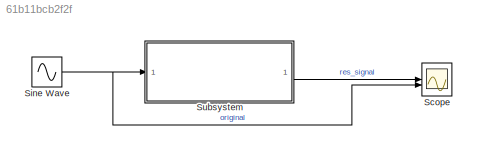
MODEL slx_61b11bcb2f2f
KIND model
CONFIG AbsTol = auto
CONFIG EnableMultiTasking = off
CONFIG FixedStep = auto
CONFIG MaxStep = auto
CONFIG MinStep = auto
CONFIG RelTol = 1e-3
CONFIG SampleTimeConstraint = Unconstrained
CONFIG SolverName = VariableStepAuto
CONFIG StartTime = 0.0
CONFIG StopTime = 10.0
BLOCK [Scope] Scope
  Floating = off
  NumInputPorts = 2
  ScopeSpecificationString = Simulink.scopes.TimeScopeBlockCfg('CurrentConfiguration', extmgr.ConfigurationSet(extmgr.Configuration('Core','General UI',true),extmgr.Configuration('Core','Source UI',true),extmgr.Configuration('Sources','WiredSimulink',true),extmgr.Configuration('Visuals','Time Domain',true,'SerializedDisplays',{struct('MinYLimReal','-1.24861','MaxYLimReal','1.24861','YLabelReal','','MinYLimMag','0.00000','MaxY...<+1386ch>
BLOCK [Sin] Sine Wave
  SampleTime = 0
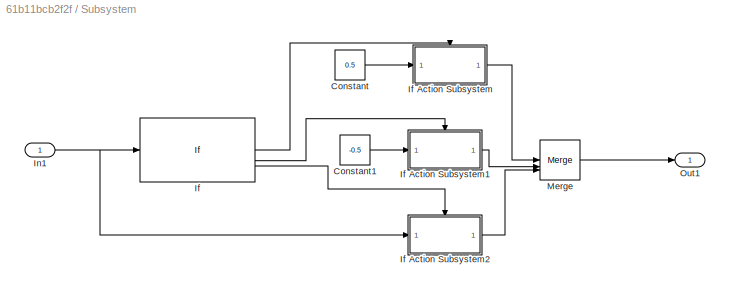
BLOCK [SubSystem] Subsystem
BLOCK [Constant] Subsystem/Constant
  Value = 0.5
BLOCK [Constant] Subsystem/Constant1
  Value = -0.5
BLOCK [If] Subsystem/If
  ElseIfExpressions = u1<=-0.5
  IfExpression = u1 >= 0.5
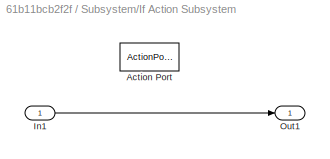
BLOCK [SubSystem] Subsystem/If Action Subsystem
  TreatAsAtomicUnit = on
BLOCK [ActionPort] Subsystem/If Action Subsystem/Action Port
  ActionPortLabel = if(u1 >= 0.5)
BLOCK [Inport] Subsystem/If Action Subsystem/In1
BLOCK [Outport] Subsystem/If Action Subsystem/Out1
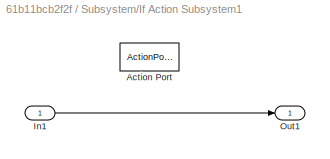
BLOCK [SubSystem] Subsystem/If Action Subsystem1
  TreatAsAtomicUnit = on
BLOCK [ActionPort] Subsystem/If Action Subsystem1/Action Port
  ActionPortLabel = elseif(u1<=-0.5)
BLOCK [Inport] Subsystem/If Action Subsystem1/In1
BLOCK [Outport] Subsystem/If Action Subsystem1/Out1
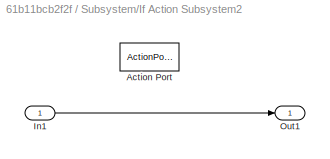
BLOCK [SubSystem] Subsystem/If Action Subsystem2
  TreatAsAtomicUnit = on
BLOCK [ActionPort] Subsystem/If Action Subsystem2/Action Port
  ActionPortLabel = else
BLOCK [Inport] Subsystem/If Action Subsystem2/In1
BLOCK [Outport] Subsystem/If Action Subsystem2/Out1
BLOCK [Inport] Subsystem/In1
BLOCK [Merge] Subsystem/Merge
  Inputs = 3
BLOCK [Outport] Subsystem/Out1
NET Sine Wave:1 -> Scope:2, Subsystem:1
LINE Subsystem/Constant1:1 -> Subsystem/If Action Subsystem1:1
LINE Subsystem/Constant:1 -> Subsystem/If Action Subsystem:1
LINE Subsystem/If Action Subsystem/In1:1 -> Subsystem/If Action Subsystem/Out1:1
LINE Subsystem/If Action Subsystem1/In1:1 -> Subsystem/If Action Subsystem1/Out1:1
LINE Subsystem/If Action Subsystem1:1 -> Subsystem/Merge:2
LINE Subsystem/If Action Subsystem2/In1:1 -> Subsystem/If Action Subsystem2/Out1:1
LINE Subsystem/If Action Subsystem2:1 -> Subsystem/Merge:3
LINE Subsystem/If Action Subsystem:1 -> Subsystem/Merge:1
LINE Subsystem/If:1 -> Subsystem/If Action Subsystem:ifaction
LINE Subsystem/If:2 -> Subsystem/If Action Subsystem1:ifaction
LINE Subsystem/If:3 -> Subsystem/If Action Subsystem2:ifaction
NET Subsystem/In1:1 -> Subsystem/If Action Subsystem2:1, Subsystem/If:1
LINE Subsystem/Merge:1 -> Subsystem/Out1:1
LINE Subsystem:1 -> Scope:1
note: NET lines group one-source signal fan-out (src -> all destinations, sorted); 1:1 wires keep LINE
